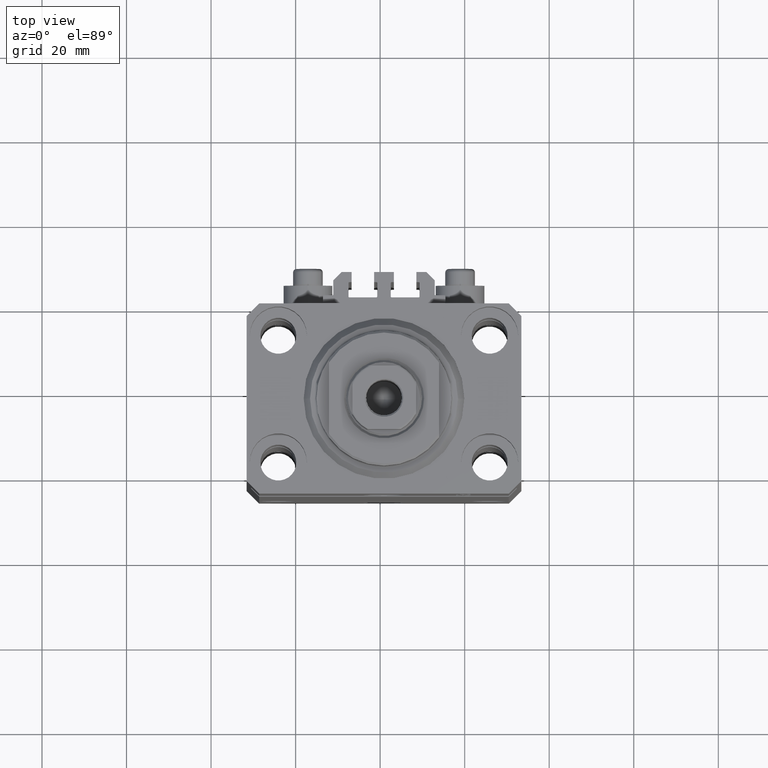
[diagram: clean part render]
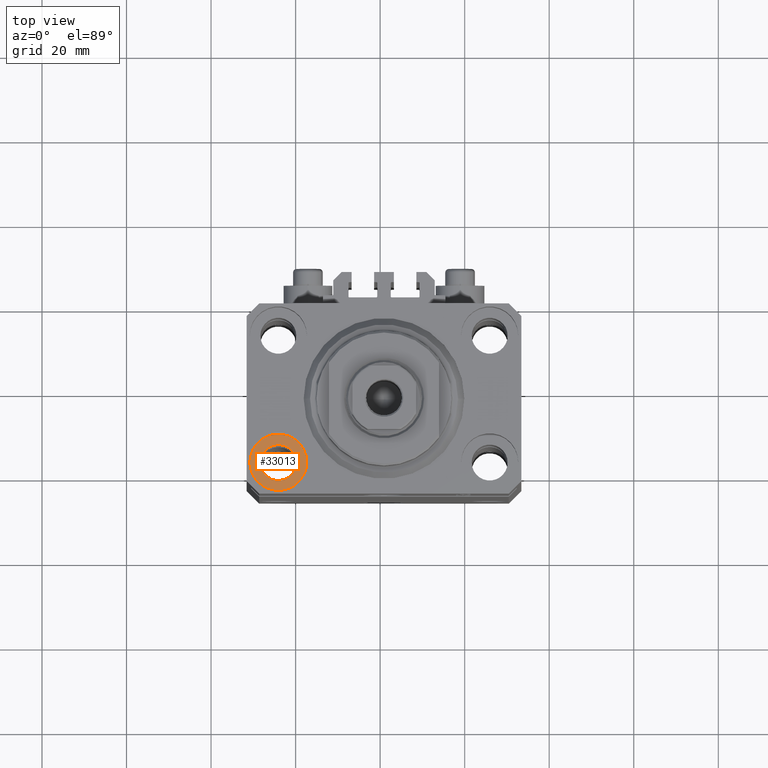
[diagram: same view with one face highlighted and labeled with its STEP entity id]
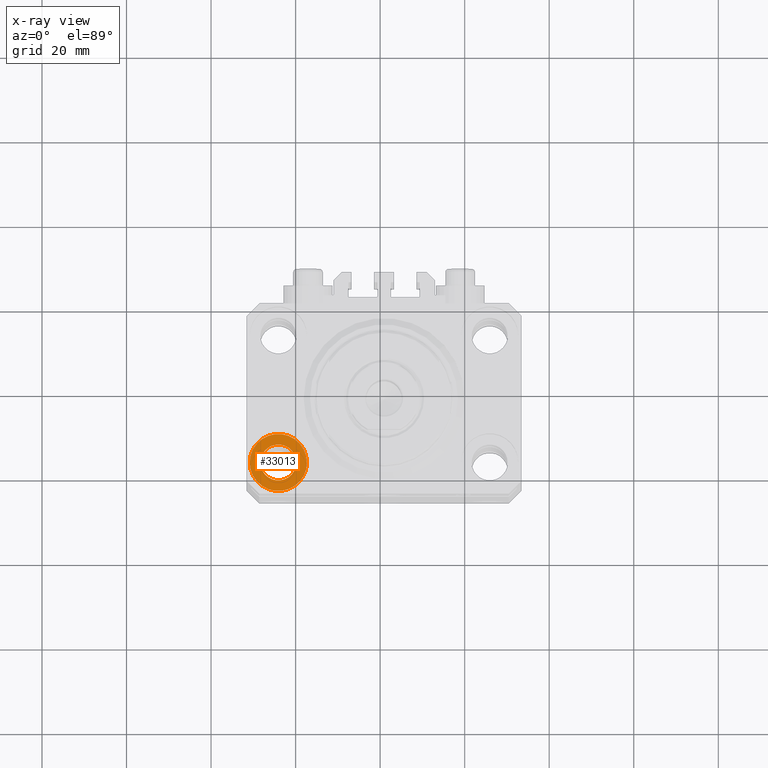
[diagram: x-ray of the same camera — body ghosted, the highlighted face saturated]
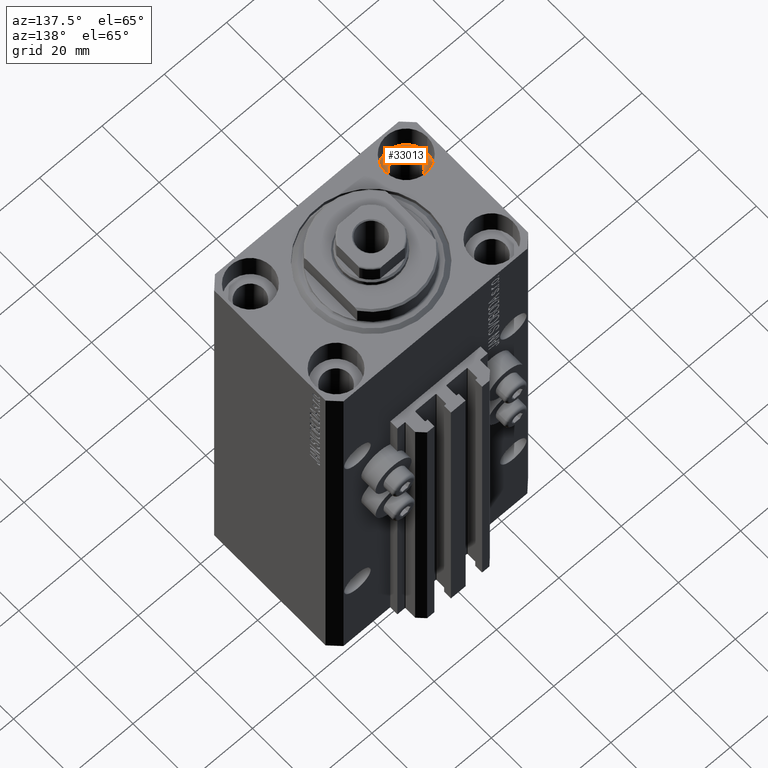
[diagram: same view with one face highlighted and labeled with its STEP entity id]
A machine part, top view. The second image highlights one B-rep face of the part: STEP entity #33013.
The next image is the same camera in x-ray: the body ghosted, the highlighted face saturated — about 0% of this face is hidden behind the body in this view.
A second angle (auxiliary view) of the same face is appended — the face is thin or edge-on in the first view.
In plain terms, the highlighted planar face has unit normal (0, 0, 1).
Its self-contained STEP definition (entity closure, byte-faithful):
#36 = AXIS2_PLACEMENT_3D ( 'NONE', #21155, #35870, #32252 ) ;
#1215 = CIRCLE ( 'NONE', #28140, 6.750000000041541881 ) ;
#3975 = VERTEX_POINT ( 'NONE', #31246 ) ;
#4177 = AXIS2_PLACEMENT_3D ( 'NONE', #9211, #45645, #23684 ) ;
#4219 = ORIENTED_EDGE ( 'NONE', *, *, #18427, .F. ) ;
#6373 = EDGE_LOOP ( 'NONE', ( #36071, #4219 ) ) ;
#6701 = CARTESIAN_POINT ( 'NONE',  ( -25.00000000000000355, -15.00000000000000000, -9.000000000000000000 ) ) ;
#6914 = PLANE ( 'NONE',  #36 ) ;
#6972 = CARTESIAN_POINT ( 'NONE',  ( -20.74999999995846522, -15.00000000000000000, -9.000000000000000000 ) ) ;
#7064 = CARTESIAN_POINT ( 'NONE',  ( -31.75000000004154899, -15.00000000000000000, -9.000000000000000000 ) ) ;
#7600 = ORIENTED_EDGE ( 'NONE', *, *, #22767, .T. ) ;
#9211 = CARTESIAN_POINT ( 'NONE',  ( -25.00000000000000355, -15.00000000000000000, -9.000000000000000000 ) ) ;
#11052 = DIRECTION ( 'NONE',  ( 1.000000000000000000, 0.000000000000000000, 0.000000000000000000 ) ) ;
#12039 = CIRCLE ( 'NONE', #45921, 6.750000000041541881 ) ;
#14495 = VERTEX_POINT ( 'NONE', #14566 ) ;
#14566 = CARTESIAN_POINT ( 'NONE',  ( -29.25000000004154543, -15.00000000000000000, -9.000000000000000000 ) ) ;
#14650 = DIRECTION ( 'NONE',  ( 1.000000000000000000, 0.000000000000000000, 0.000000000000000000 ) ) ;
#14670 = CARTESIAN_POINT ( 'NONE',  ( -25.00000000000000355, -15.00000000000000000, -9.000000000000000000 ) ) ;
#16991 = EDGE_CURVE ( 'NONE', #47052, #14495, #24941, .T. ) ;
#18427 = EDGE_CURVE ( 'NONE', #14495, #47052, #45111, .T. ) ;
#21155 = CARTESIAN_POINT ( 'NONE',  ( -25.00000000000000355, -15.00000000000000000, -9.000000000000000000 ) ) ;
#22767 = EDGE_CURVE ( 'NONE', #3975, #22913, #1215, .T. ) ;
#22913 = VERTEX_POINT ( 'NONE', #7064 ) ;
#23684 = DIRECTION ( 'NONE',  ( 1.000000000000000000, 0.000000000000000000, 0.000000000000000000 ) ) ;
#24351 = EDGE_CURVE ( 'NONE', #22913, #3975, #12039, .T. ) ;
#24941 = CIRCLE ( 'NONE', #4177, 4.250000000041540105 ) ;
#26398 = CARTESIAN_POINT ( 'NONE',  ( -25.00000000000000355, -15.00000000000000000, -9.000000000000000000 ) ) ;
#27305 = ORIENTED_EDGE ( 'NONE', *, *, #24351, .T. ) ;
#28140 = AXIS2_PLACEMENT_3D ( 'NONE', #26398, #45217, #30023 ) ;
#30023 = DIRECTION ( 'NONE',  ( 1.000000000000000000, 0.000000000000000000, 0.000000000000000000 ) ) ;
#31246 = CARTESIAN_POINT ( 'NONE',  ( -18.24999999995846167, -15.00000000000000000, -9.000000000000000000 ) ) ;
#32252 = DIRECTION ( 'NONE',  ( 1.000000000000000000, 0.000000000000000000, -0.000000000000000000 ) ) ;
#32769 = DIRECTION ( 'NONE',  ( 0.000000000000000000, 0.000000000000000000, 1.000000000000000000 ) ) ;
#33013 = ADVANCED_FACE ( 'NONE', ( #35637, #39499 ), #6914, .T. ) ;
#35637 = FACE_BOUND ( 'NONE', #6373, .T. ) ;
#35870 = DIRECTION ( 'NONE',  ( 0.000000000000000000, 0.000000000000000000, 1.000000000000000000 ) ) ;
#36071 = ORIENTED_EDGE ( 'NONE', *, *, #16991, .F. ) ;
#38195 = AXIS2_PLACEMENT_3D ( 'NONE', #6701, #40245, #14650 ) ;
#39499 = FACE_OUTER_BOUND ( 'NONE', #46224, .T. ) ;
#40245 = DIRECTION ( 'NONE',  ( 0.000000000000000000, 0.000000000000000000, 1.000000000000000000 ) ) ;
#45111 = CIRCLE ( 'NONE', #38195, 4.250000000041540105 ) ;
#45217 = DIRECTION ( 'NONE',  ( 0.000000000000000000, 0.000000000000000000, 1.000000000000000000 ) ) ;
#45645 = DIRECTION ( 'NONE',  ( 0.000000000000000000, 0.000000000000000000, 1.000000000000000000 ) ) ;
#45921 = AXIS2_PLACEMENT_3D ( 'NONE', #14670, #32769, #11052 ) ;
#46224 = EDGE_LOOP ( 'NONE', ( #7600, #27305 ) ) ;
#47052 = VERTEX_POINT ( 'NONE', #6972 ) ;